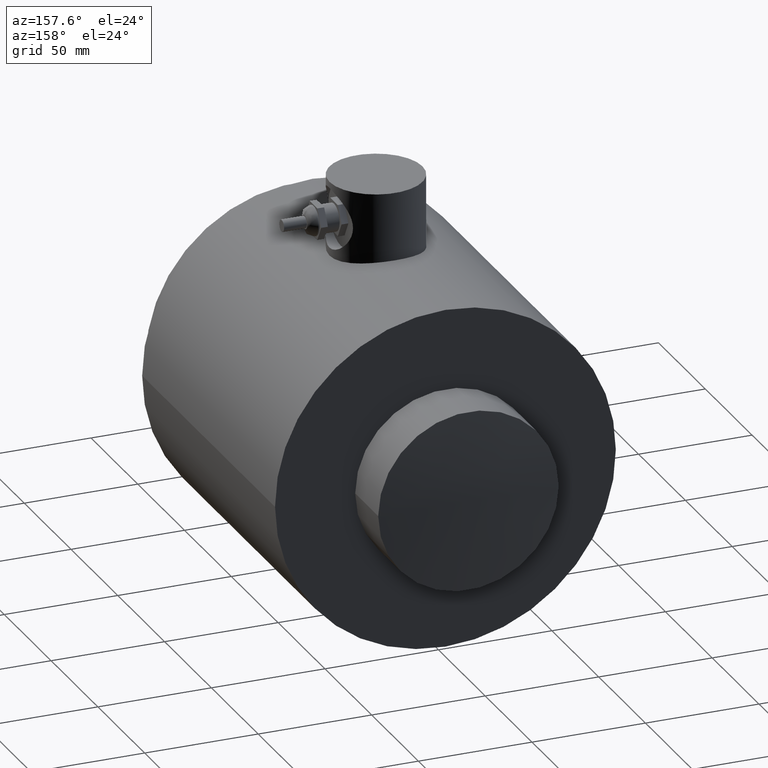
[diagram: clean part render]
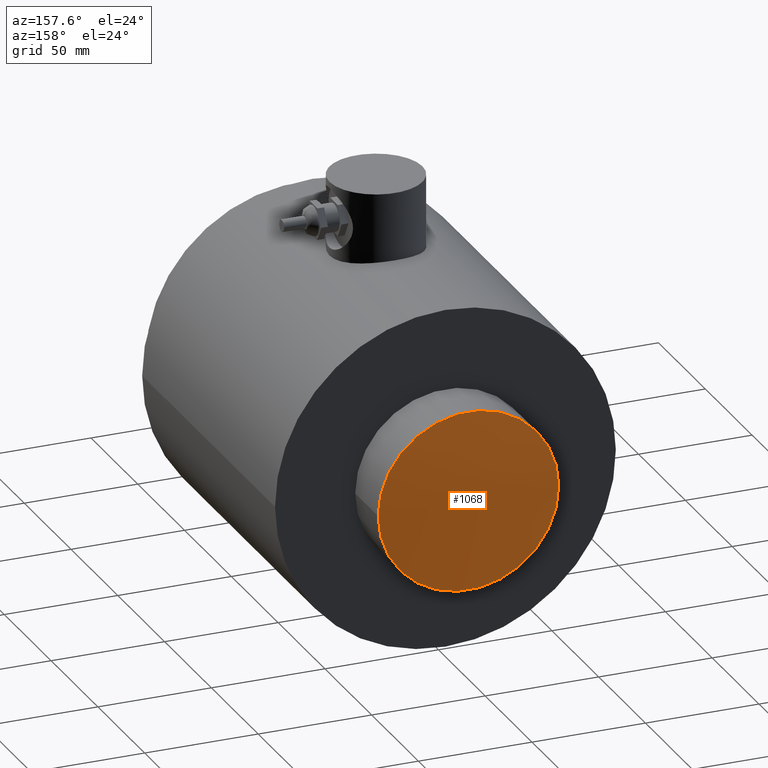
[diagram: same view with one face highlighted and labeled with its STEP entity id]
A machine part, auxiliary view. The second image highlights one B-rep face of the part: STEP entity #1068.
In plain terms, the highlighted spherical surface has radius 431.8 mm.
Its self-contained STEP definition (entity closure, byte-faithful):
#15=SPHERICAL_SURFACE('',#1168,17.0000000000001);
#175=FACE_OUTER_BOUND('',#247,.T.);
#247=EDGE_LOOP('',(#952));
#420=CIRCLE('',#1169,1.565);
#520=VERTEX_POINT('',#4335);
#667=EDGE_CURVE('',#520,#520,#420,.T.);
#952=ORIENTED_EDGE('',*,*,#667,.F.);
#1068=ADVANCED_FACE('',(#175),#15,.T.);
#1168=AXIS2_PLACEMENT_3D('',#4334,#1407,#1408);
#1169=AXIS2_PLACEMENT_3D('',#4336,#1409,#1410);
#1407=DIRECTION('center_axis',(6.12323399573677E-17,0.,1.));
#1408=DIRECTION('ref_axis',(1.,0.,0.));
#1409=DIRECTION('center_axis',(0.,-1.,0.));
#1410=DIRECTION('ref_axis',(-1.,0.,0.));
#4334=CARTESIAN_POINT('Origin',(0.,-9.7592125984252,0.));
#4335=CARTESIAN_POINT('',(1.565,7.16859809876782,0.));
#4336=CARTESIAN_POINT('Origin',(0.,7.16859809876782,0.));